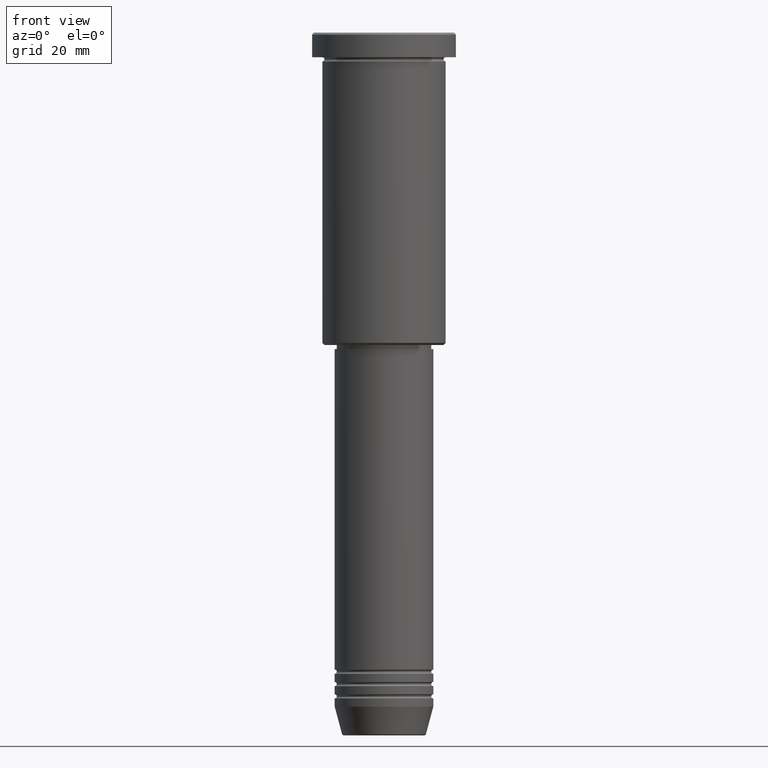
[diagram: clean part render]
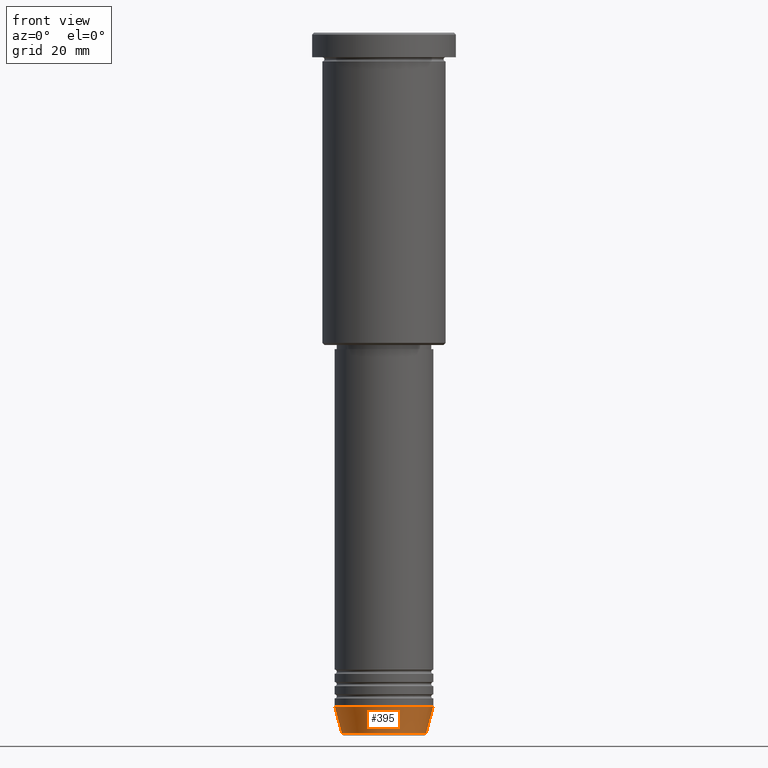
[diagram: same view with one face highlighted and labeled with its STEP entity id]
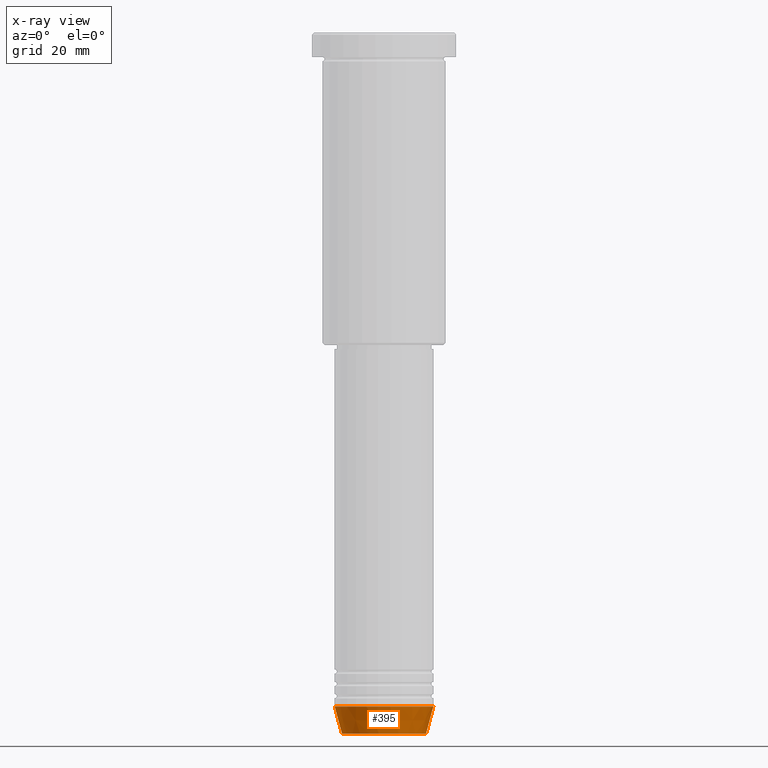
[diagram: x-ray of the same camera — body ghosted, the highlighted face saturated]
A machine part, front view. The second image highlights one B-rep face of the part: STEP entity #395.
The next image is the same camera in x-ray: the body ghosted, the highlighted face saturated — about 0% of this face is hidden behind the body in this view.
In plain terms, the highlighted conical surface has half-angle 15 deg.
Its self-contained STEP definition (entity closure, byte-faithful):
#7 = ORIENTED_EDGE ( 'NONE', *, *, #379, .F. ) ;
#47 = CIRCLE ( 'NONE', #1133, 12.00000000000000000 ) ;
#78 = DIRECTION ( 'NONE',  ( 0.2588190451025213501, 0.000000000000000000, 0.9659258262890680902 ) ) ;
#101 = VERTEX_POINT ( 'NONE', #1098 ) ;
#131 = CARTESIAN_POINT ( 'NONE',  ( 0.000000000000000000, 0.000000000000000000, -164.0000000000000000 ) ) ;
#139 = DIRECTION ( 'NONE',  ( 1.000000000000000000, 0.000000000000000000, 0.000000000000000000 ) ) ;
#290 = ORIENTED_EDGE ( 'NONE', *, *, #399, .T. ) ;
#379 = EDGE_CURVE ( 'NONE', #516, #678, #47, .T. ) ;
#395 = ADVANCED_FACE ( 'NONE', ( #977 ), #550, .T. ) ;
#396 = CARTESIAN_POINT ( 'NONE',  ( -12.00000000000000000, 1.469576158976823947E-15, -164.0000000000000000 ) ) ;
#399 = EDGE_CURVE ( 'NONE', #1048, #101, #582, .T. ) ;
#413 = DIRECTION ( 'NONE',  ( 1.000000000000000000, 0.000000000000000000, 0.000000000000000000 ) ) ;
#414 = ORIENTED_EDGE ( 'NONE', *, *, #503, .T. ) ;
#503 = EDGE_CURVE ( 'NONE', #101, #678, #1072, .T. ) ;
#507 = DIRECTION ( 'NONE',  ( -0.000000000000000000, -0.000000000000000000, 1.000000000000000000 ) ) ;
#516 = VERTEX_POINT ( 'NONE', #819 ) ;
#550 = CONICAL_SURFACE ( 'NONE', #696, 12.00000000000000000, 0.2617993877991500740 ) ;
#582 = CIRCLE ( 'NONE', #889, 10.22365507213719660 ) ;
#598 = ORIENTED_EDGE ( 'NONE', *, *, #1171, .F. ) ;
#643 = VECTOR ( 'NONE', #78, 1000.000000000000000 ) ;
#678 = VERTEX_POINT ( 'NONE', #1025 ) ;
#680 = DIRECTION ( 'NONE',  ( 1.000000000000000000, 0.000000000000000000, 0.000000000000000000 ) ) ;
#696 = AXIS2_PLACEMENT_3D ( 'NONE', #790, #1039, #680 ) ;
#703 = DIRECTION ( 'NONE',  ( -0.000000000000000000, -0.000000000000000000, 1.000000000000000000 ) ) ;
#719 = VECTOR ( 'NONE', #758, 1000.000000000000000 ) ;
#758 = DIRECTION ( 'NONE',  ( -0.2588190451025213501, 3.169619151431772337E-17, 0.9659258262890680902 ) ) ;
#781 = CARTESIAN_POINT ( 'NONE',  ( 0.000000000000000000, 0.000000000000000000, -170.6294095225512706 ) ) ;
#790 = CARTESIAN_POINT ( 'NONE',  ( 0.000000000000000000, 0.000000000000000000, -164.0000000000000000 ) ) ;
#806 = CARTESIAN_POINT ( 'NONE',  ( 12.00000000000000000, 0.000000000000000000, -164.0000000000000000 ) ) ;
#819 = CARTESIAN_POINT ( 'NONE',  ( -12.00000000000000000, 1.469576158976823947E-15, -164.0000000000000000 ) ) ;
#861 = LINE ( 'NONE', #396, #719 ) ;
#889 = AXIS2_PLACEMENT_3D ( 'NONE', #781, #703, #139 ) ;
#977 = FACE_OUTER_BOUND ( 'NONE', #1092, .T. ) ;
#1005 = CARTESIAN_POINT ( 'NONE',  ( -10.22365507213719837, 1.360806402472383336E-15, -170.6294095225512706 ) ) ;
#1025 = CARTESIAN_POINT ( 'NONE',  ( 12.00000000000000000, 0.000000000000000000, -164.0000000000000000 ) ) ;
#1039 = DIRECTION ( 'NONE',  ( -0.000000000000000000, -0.000000000000000000, 1.000000000000000000 ) ) ;
#1048 = VERTEX_POINT ( 'NONE', #1005 ) ;
#1072 = LINE ( 'NONE', #806, #643 ) ;
#1092 = EDGE_LOOP ( 'NONE', ( #598, #290, #414, #7 ) ) ;
#1098 = CARTESIAN_POINT ( 'NONE',  ( 10.22365507213719660, 0.000000000000000000, -170.6294095225512706 ) ) ;
#1133 = AXIS2_PLACEMENT_3D ( 'NONE', #131, #507, #413 ) ;
#1171 = EDGE_CURVE ( 'NONE', #1048, #516, #861, .T. ) ;